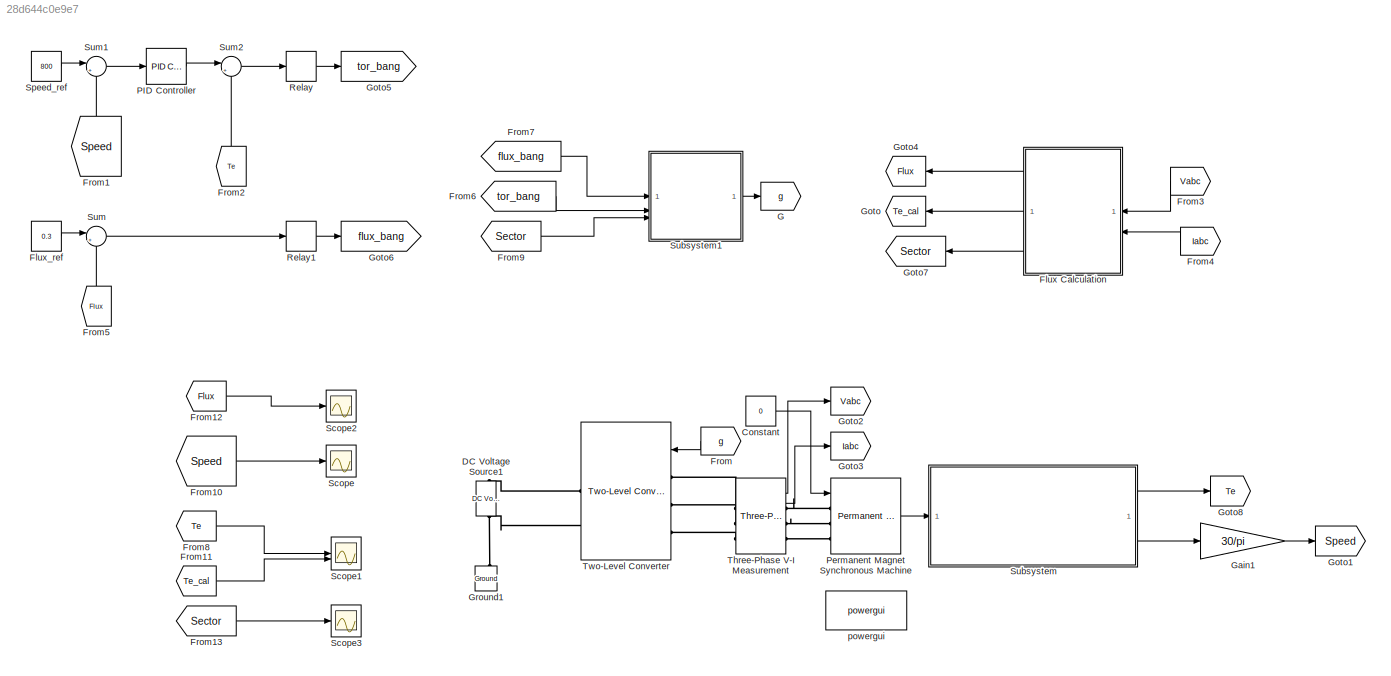
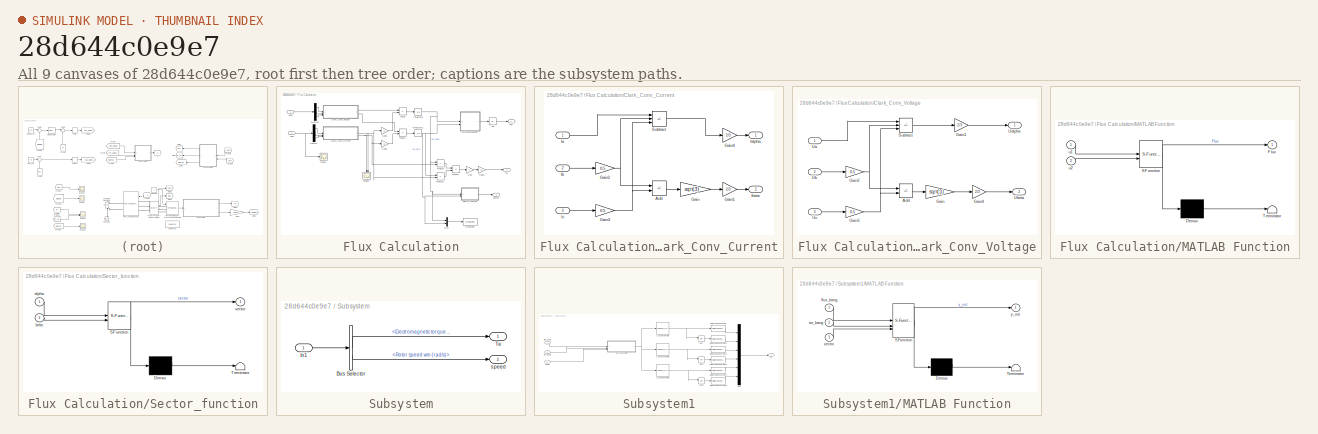
[diagram: thumbnail index - all 9 canvases of the model, root first then tree order]
MODEL slx_28d644c0e9e7
KIND model
CONFIG AbsTol = auto
CONFIG EnableMultiTasking = off
CONFIG FixedStep = auto
CONFIG MaxStep = auto
CONFIG MinStep = auto
CONFIG RelTol = 1e-4
CONFIG SampleTimeConstraint = Unconstrained
CONFIG SolverName = ode23tb
CONFIG StartTime = 0.0
CONFIG StopTime = 0.4
BLOCK [Constant] Constant
  Value = 0
BLOCK [Reference] DC Voltage Source1  REF=spsDCVoltageSourceLib/DC Voltage Source
  LibrarySourceBlock = sps_lib/Sources/DC Voltage Source
  SourceBlock = spsDCVoltageSourceLib/DC Voltage Source
  SourceType = DC Voltage Source
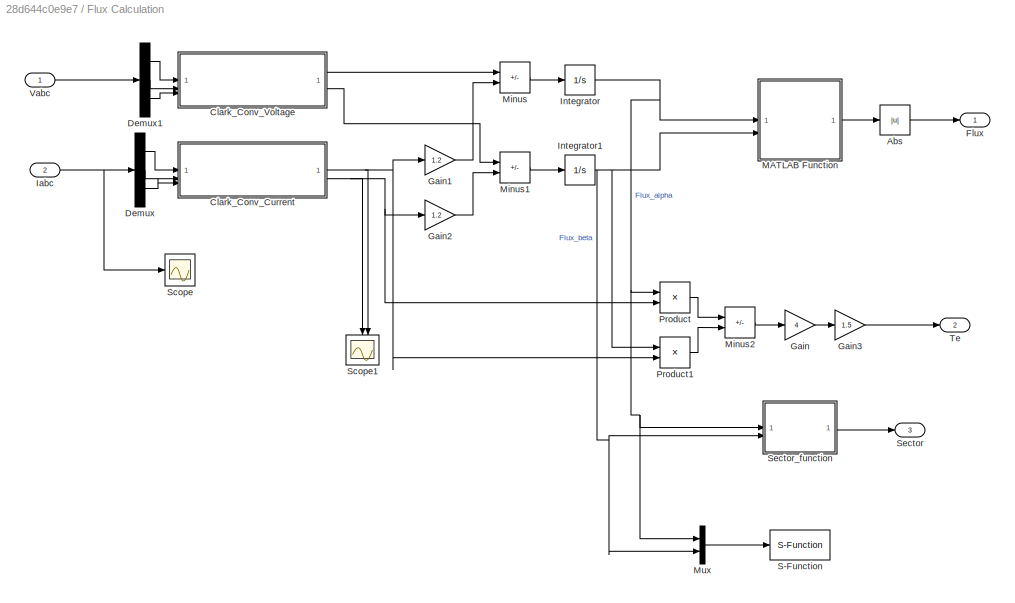
BLOCK [SubSystem] Flux Calculation
BLOCK [Abs] Flux Calculation/Abs
  Commented = through
  SaturateOnIntegerOverflow = off
BLOCK [SubSystem] Flux Calculation/Clark_Conv_Current
BLOCK [Sum] Flux Calculation/Clark_Conv_Current/Add
  IconShape = rectangular
  Inputs = +-
BLOCK [Gain] Flux Calculation/Clark_Conv_Current/Gain
  Gain = sqrt(3)
BLOCK [Gain] Flux Calculation/Clark_Conv_Current/Gain1
  Gain = 2/3
BLOCK [Gain] Flux Calculation/Clark_Conv_Current/Gain2
  Gain = 0.5
BLOCK [Gain] Flux Calculation/Clark_Conv_Current/Gain3
  Gain = 0.5
BLOCK [Gain] Flux Calculation/Clark_Conv_Current/Gain4
  Gain = 2/3
BLOCK [Inport] Flux Calculation/Clark_Conv_Current/Ia
BLOCK [Outport] Flux Calculation/Clark_Conv_Current/Ialpha
BLOCK [Inport] Flux Calculation/Clark_Conv_Current/Ib
  Port = 2
BLOCK [Outport] Flux Calculation/Clark_Conv_Current/Ibeta
  Port = 2
BLOCK [Inport] Flux Calculation/Clark_Conv_Current/Ic
  Port = 3
BLOCK [Sum] Flux Calculation/Clark_Conv_Current/Subtract
  IconShape = rectangular
  Inputs = +--
BLOCK [SubSystem] Flux Calculation/Clark_Conv_Voltage
BLOCK [Sum] Flux Calculation/Clark_Conv_Voltage/Add
  IconShape = rectangular
  Inputs = +-
BLOCK [Gain] Flux Calculation/Clark_Conv_Voltage/Gain
  Gain = sqrt(3)
BLOCK [Gain] Flux Calculation/Clark_Conv_Voltage/Gain1
  Gain = 2/3
BLOCK [Gain] Flux Calculation/Clark_Conv_Voltage/Gain2
  Gain = 0.5
BLOCK [Gain] Flux Calculation/Clark_Conv_Voltage/Gain3
  Gain = 0.5
BLOCK [Gain] Flux Calculation/Clark_Conv_Voltage/Gain4
  Gain = 2/3
BLOCK [Sum] Flux Calculation/Clark_Conv_Voltage/Subtract
  IconShape = rectangular
  Inputs = +--
BLOCK [Inport] Flux Calculation/Clark_Conv_Voltage/Ua
BLOCK [Outport] Flux Calculation/Clark_Conv_Voltage/Ualpha
BLOCK [Inport] Flux Calculation/Clark_Conv_Voltage/Ub
  Port = 2
BLOCK [Outport] Flux Calculation/Clark_Conv_Voltage/Ubeta
  Port = 2
BLOCK [Inport] Flux Calculation/Clark_Conv_Voltage/Uc
  Port = 3
BLOCK [Demux] Flux Calculation/Demux
  Outputs = 3
BLOCK [Demux] Flux Calculation/Demux1
  Outputs = 3
BLOCK [Outport] Flux Calculation/Flux
BLOCK [Gain] Flux Calculation/Gain
  Gain = 4
BLOCK [Gain] Flux Calculation/Gain1
  Gain = 1.2
BLOCK [Gain] Flux Calculation/Gain2
  Gain = 1.2
BLOCK [Gain] Flux Calculation/Gain3
  Gain = 1.5
BLOCK [Inport] Flux Calculation/Iabc
  Port = 2
BLOCK [Integrator] Flux Calculation/Integrator
BLOCK [Integrator] Flux Calculation/Integrator1
BLOCK [SubSystem] Flux Calculation/MATLAB Function
  ErrorFcn = Stateflow.Translate.translate
  LibrarySourceBlock = simulink/User-Defined\nFunctions/MATLAB Function
  PermitHierarchicalResolution = ExplicitOnly
  SFBlockType = MATLAB Function
  TreatAsAtomicUnit = on
BLOCK [Demux] Flux Calculation/MATLAB Function/ Demux 
  Outputs = 1
BLOCK [S-Function] Flux Calculation/MATLAB Function/ SFunction 
  EnableBusSupport = on
  FunctionName = sf_sfun
  PortCounts = [2 2]
  SFcnIsStateOwnerBlock = off
  SFunctionDeploymentMode = off
  Tag = Stateflow S-Function 2
BLOCK [Terminator] Flux Calculation/MATLAB Function/ Terminator 
BLOCK [Outport] Flux Calculation/MATLAB Function/Flux
BLOCK [Inport] Flux Calculation/MATLAB Function/u1
BLOCK [Inport] Flux Calculation/MATLAB Function/u2
  Port = 2
BLOCK [Sum] Flux Calculation/Minus
  IconShape = rectangular
  Inputs = +-
BLOCK [Sum] Flux Calculation/Minus1
  IconShape = rectangular
  Inputs = +-
BLOCK [Sum] Flux Calculation/Minus2
  IconShape = rectangular
  Inputs = +-
BLOCK [Mux] Flux Calculation/Mux
  DisplayOption = bar
  Inputs = 2
BLOCK [Product] Flux Calculation/Product
BLOCK [Product] Flux Calculation/Product1
BLOCK [S-Function] Flux Calculation/S-Function
  Commented = on
  EnableBusSupport = off
  FunctionName = sector
  SFcnIsStateOwnerBlock = off
  SFunctionDeploymentMode = off
BLOCK [Scope] Flux Calculation/Scope
  Floating = off
  NumInputPorts = 1
  ScopeSpecificationString = Simulink.scopes.TimeScopeBlockCfg('CurrentConfiguration', extmgr.ConfigurationSet(extmgr.Configuration('Core','General UI',true),extmgr.Configuration('Core','Source UI',true),extmgr.Configuration('Sources','WiredSimulink',true,'DataLoggingVariableName','ScopeData1'),extmgr.Configuration('Visuals','Time Domain',true,'SerializedDisplays',{struct('MinYLimReal','-43.07955','MaxYLimReal','43.6486','YLa...<+1457ch>
BLOCK [Scope] Flux Calculation/Scope1
  Floating = off
  NameLocation = left
  NumInputPorts = 2
  ScopeSpecificationString = Simulink.scopes.TimeScopeBlockCfg('CurrentConfiguration', extmgr.ConfigurationSet(extmgr.Configuration('Core','General UI',true),extmgr.Configuration('Core','Source UI',true),extmgr.Configuration('Sources','WiredSimulink',true,'DataLoggingVariableName','ScopeData2'),extmgr.Configuration('Visuals','Time Domain',true,'SerializedDisplays',{struct('MinYLimReal','-44.45059','MaxYLimReal','27.88646','YL...<+1461ch>
BLOCK [Outport] Flux Calculation/Sector
  Port = 3
BLOCK [SubSystem] Flux Calculation/Sector_function
  ErrorFcn = Stateflow.Translate.translate
  LibrarySourceBlock = simulink/User-Defined\nFunctions/MATLAB Function
  PermitHierarchicalResolution = ExplicitOnly
  SFBlockType = MATLAB Function
  TreatAsAtomicUnit = on
BLOCK [Demux] Flux Calculation/Sector_function/ Demux 
  Outputs = 1
BLOCK [S-Function] Flux Calculation/Sector_function/ SFunction 
  EnableBusSupport = on
  FunctionName = sf_sfun
  PortCounts = [2 2]
  SFcnIsStateOwnerBlock = off
  SFunctionDeploymentMode = off
  Tag = Stateflow S-Function 4
BLOCK [Terminator] Flux Calculation/Sector_function/ Terminator 
BLOCK [Inport] Flux Calculation/Sector_function/alpha
BLOCK [Inport] Flux Calculation/Sector_function/beta
  Port = 2
BLOCK [Outport] Flux Calculation/Sector_function/sector
BLOCK [Outport] Flux Calculation/Te
  Port = 2
BLOCK [Inport] Flux Calculation/Vabc
BLOCK [Constant] Flux_ref
  Value = 0.3
BLOCK [From] From
  GotoTag = g
BLOCK [From] From1
  GotoTag = Speed
  NameLocation = right
BLOCK [From] From10
  GotoTag = Speed
BLOCK [From] From11
  GotoTag = Te_cal
BLOCK [From] From12
  GotoTag = Flux
  NameLocation = top
BLOCK [From] From13
  GotoTag = Sector
BLOCK [From] From2
  GotoTag = Te
  NameLocation = right
BLOCK [From] From3
  GotoTag = Vabc
BLOCK [From] From4
  GotoTag = Iabc
BLOCK [From] From5
  GotoTag = Flux
  NameLocation = left
BLOCK [From] From6
  GotoTag = tor_bang
BLOCK [From] From7
  GotoTag = flux_bang
BLOCK [From] From8
  GotoTag = Te
BLOCK [From] From9
  GotoTag = Sector
BLOCK [Goto] G
  GotoTag = g
BLOCK [Gain] Gain1
  Gain = 30/pi
BLOCK [Goto] Goto
  GotoTag = Te_cal
BLOCK [Goto] Goto1
  GotoTag = Speed
BLOCK [Goto] Goto2
  GotoTag = Vabc
BLOCK [Goto] Goto3
  GotoTag = Iabc
BLOCK [Goto] Goto4
  GotoTag = Flux
BLOCK [Goto] Goto5
  GotoTag = tor_bang
BLOCK [Goto] Goto6
  GotoTag = flux_bang
BLOCK [Goto] Goto7
  GotoTag = Sector
BLOCK [Goto] Goto8
  GotoTag = Te
BLOCK [Reference] Ground1  REF=spsGroundLib/Ground
  LibrarySourceBlock = sps_lib/Utilities/Ground
  NameLocation = right
  SourceBlock = spsGroundLib/Ground
  SourceType = Ground
BLOCK [Reference] PID Controller  REF=slpidlib/PID Controller
  LibrarySourceBlock = simulink/Continuous/PID Controller
  SourceBlock = slpidlib/PID Controller
  SourceType = PID 1dof
BLOCK [Reference] Permanent Magnet Synchronous Machine  REF=spsPermanentMagnetSynchronousMachineLib/Permanent Magnet
Synchronous Machine
  LibrarySourceBlock = sps_lib/Electrical Machines/Permanent Magnet\nSynchronous Machine
  SourceBlock = spsPermanentMagnetSynchronousMachineLib/Permanent Magnet\nSynchronous Machine
  SourceType = Permanent Magnet Synchronous Machine
BLOCK [Relay] Relay
  OffSwitchValue = -0.1
  OnSwitchValue = 0.1
BLOCK [Relay] Relay1
  OffSwitchValue = -0.002
  OnSwitchValue = 0.002
  ZeroCross = off
BLOCK [Scope] Scope
  Floating = off
  NumInputPorts = 1
  ScopeSpecificationString = Simulink.scopes.TimeScopeBlockCfg('CurrentConfiguration', extmgr.ConfigurationSet(extmgr.Configuration('Core','General UI',true),extmgr.Configuration('Core','Source UI',true),extmgr.Configuration('Sources','WiredSimulink',true),extmgr.Configuration('Visuals','Time Domain',true,'SerializedDisplays',{struct('MinYLimReal','-131.11034','MaxYLimReal','1172.12178','YLabelReal','','MinYLimMag',' 0.00000'...<+1396ch>
BLOCK [Scope] Scope1
  Floating = off
  NumInputPorts = 2
  ScopeSpecificationString = Simulink.scopes.TimeScopeBlockCfg('CurrentConfiguration', extmgr.ConfigurationSet(extmgr.Configuration('Core','General UI',true),extmgr.Configuration('Core','Source UI',true),extmgr.Configuration('Sources','WiredSimulink',true,'DataLoggingVariableName','ScopeData3'),extmgr.Configuration('Visuals','Time Domain',true,'SerializedDisplays',{struct('MinYLimReal','-26.73405','MaxYLimReal','27.60345','YL...<+1470ch>
BLOCK [Scope] Scope2
  Floating = off
  NumInputPorts = 1
  ScopeSpecificationString = Simulink.scopes.TimeScopeBlockCfg('CurrentConfiguration', extmgr.ConfigurationSet(extmgr.Configuration('Core','General UI',true),extmgr.Configuration('Core','Source UI',true),extmgr.Configuration('Sources','WiredSimulink',true,'DataLoggingVariableName','ScopeData4'),extmgr.Configuration('Visuals','Time Domain',true,'SerializedDisplays',{struct('MinYLimReal','-0.04138','MaxYLimReal','0.37241','YLab...<+1430ch>
BLOCK [Scope] Scope3
  Floating = off
  NumInputPorts = 1
  ScopeSpecificationString = Simulink.scopes.TimeScopeBlockCfg('CurrentConfiguration', extmgr.ConfigurationSet(extmgr.Configuration('Core','General UI',true),extmgr.Configuration('Core','Source UI',true),extmgr.Configuration('Sources','WiredSimulink',true,'DataLoggingVariableName','ScopeData1'),extmgr.Configuration('Visuals','Time Domain',true,'SerializedDisplays',{struct('MinYLimReal','0.375','MaxYLimReal','6.625','YLabelRea...<+1421ch>
BLOCK [Constant] Speed_ref
  Value = 800
BLOCK [SubSystem] Subsystem
BLOCK [BusSelector] Subsystem/Bus Selector
  OutputSignals = Electromagnetic torque Te (N*m),Rotor speed wm (rad/s)
BLOCK [Inport] Subsystem/In1
BLOCK [Outport] Subsystem/Te
BLOCK [Outport] Subsystem/speed 
  Port = 2
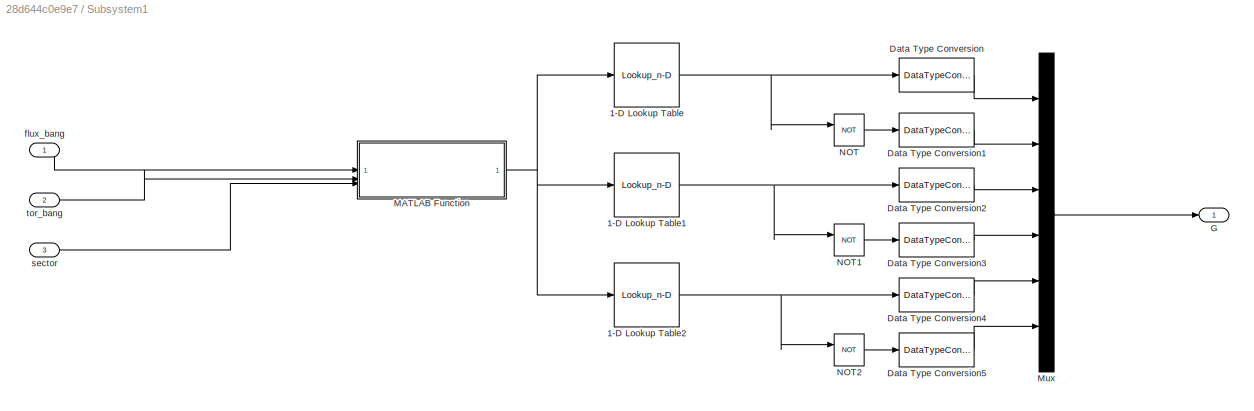
BLOCK [SubSystem] Subsystem1
BLOCK [Lookup_n-D] Subsystem1/1-D Lookup Table
  BreakpointsForDimension1 = [1,2,3,4,5,6]
  InputPortMap = u0
  InternalRulePriority = Speed
  NumberOfTableDimensions = 1
  RndMeth = Simplest
  Table = [0 0 0 1 1 1]
BLOCK [Lookup_n-D] Subsystem1/1-D Lookup Table1
  BreakpointsForDimension1 = [1,2,3,4,5,6]
  InputPortMap = u0
  InternalRulePriority = Speed
  NumberOfTableDimensions = 1
  RndMeth = Simplest
  Table = [0 1 1 0 0 1]
BLOCK [Lookup_n-D] Subsystem1/1-D Lookup Table2
  BreakpointsForDimension1 = [1,2,3,4,5,6]
  InputPortMap = u0
  InternalRulePriority = Speed
  NumberOfTableDimensions = 1
  RndMeth = Simplest
  Table = [1 0 1 0 1 0]
BLOCK [DataTypeConversion] Subsystem1/Data Type Conversion
  RndMeth = Floor
  SaturateOnIntegerOverflow = off
BLOCK [DataTypeConversion] Subsystem1/Data Type Conversion1
  RndMeth = Floor
  SaturateOnIntegerOverflow = off
BLOCK [DataTypeConversion] Subsystem1/Data Type Conversion2
  RndMeth = Floor
  SaturateOnIntegerOverflow = off
BLOCK [DataTypeConversion] Subsystem1/Data Type Conversion3
  RndMeth = Floor
  SaturateOnIntegerOverflow = off
BLOCK [DataTypeConversion] Subsystem1/Data Type Conversion4
  RndMeth = Floor
  SaturateOnIntegerOverflow = off
BLOCK [DataTypeConversion] Subsystem1/Data Type Conversion5
  RndMeth = Floor
  SaturateOnIntegerOverflow = off
BLOCK [Outport] Subsystem1/G
BLOCK [SubSystem] Subsystem1/MATLAB Function
  ErrorFcn = Stateflow.Translate.translate
  LibrarySourceBlock = simulink/User-Defined\nFunctions/MATLAB Function
  PermitHierarchicalResolution = ExplicitOnly
  SFBlockType = MATLAB Function
  TreatAsAtomicUnit = on
BLOCK [Demux] Subsystem1/MATLAB Function/ Demux 
  Outputs = 1
BLOCK [S-Function] Subsystem1/MATLAB Function/ SFunction 
  EnableBusSupport = on
  FunctionName = sf_sfun
  PortCounts = [3 2]
  SFcnIsStateOwnerBlock = off
  SFunctionDeploymentMode = off
  Tag = Stateflow S-Function 3
BLOCK [Terminator] Subsystem1/MATLAB Function/ Terminator 
BLOCK [Inport] Subsystem1/MATLAB Function/flux_bang
BLOCK [Inport] Subsystem1/MATLAB Function/sector
  Port = 3
BLOCK [Inport] Subsystem1/MATLAB Function/tor_bang
  Port = 2
BLOCK [Outport] Subsystem1/MATLAB Function/y_out
BLOCK [Mux] Subsystem1/Mux
  DisplayOption = bar
  Inputs = 6
BLOCK [Logic] Subsystem1/NOT
  AllPortsSameDT = off
  IconShape = distinctive
  Operator = NOT
  OutDataTypeStr = boolean
BLOCK [Logic] Subsystem1/NOT1
  AllPortsSameDT = off
  IconShape = distinctive
  Operator = NOT
  OutDataTypeStr = boolean
BLOCK [Logic] Subsystem1/NOT2
  AllPortsSameDT = off
  IconShape = distinctive
  Operator = NOT
  OutDataTypeStr = boolean
BLOCK [Inport] Subsystem1/flux_bang
BLOCK [Inport] Subsystem1/sector
  Port = 3
BLOCK [Inport] Subsystem1/tor_bang
  Port = 2
BLOCK [Sum] Sum
  Inputs = |+-
BLOCK [Sum] Sum1
  Inputs = |+-
BLOCK [Sum] Sum2
  Inputs = |+-
BLOCK [Reference] Three-Phase V-I Measurement  REF=spsThreePhaseVIMeasurementLib/Three-Phase
V-I Measurement
  LibrarySourceBlock = sps_lib/Sensors and Measurements/Three-Phase\nV-I Measurement
  SourceBlock = spsThreePhaseVIMeasurementLib/Three-Phase\nV-I Measurement
  SourceType = Three-Phase VI Measurement
BLOCK [Reference] Two-Level Converter  REF=spsTwoLevelConverterLib/Two-Level Converter
  LibrarySourceBlock = sps_lib/Power Electronics/Two-Level Converter
  SourceBlock = spsTwoLevelConverterLib/Two-Level Converter
  SourceType = Two-Level Converter
BLOCK [Reference] powergui  REF=spspowerguiLib/powergui
  LibrarySourceBlock = sps_lib/powergui
  Priority = 1
  SourceBlock = spspowerguiLib/powergui
  SourceType = PSB option menu block
LINE Constant:1 -> Permanent Magnet Synchronous Machine:1
LINE Flux Calculation/Abs:1 -> Flux Calculation/Flux:1
LINE Flux Calculation/Clark_Conv_Current/Add:1 -> Flux Calculation/Clark_Conv_Current/Gain:1
LINE Flux Calculation/Clark_Conv_Current/Gain1:1 -> Flux Calculation/Clark_Conv_Current/Ibeta:1
NET Flux Calculation/Clark_Conv_Current/Gain2:1 -> Flux Calculation/Clark_Conv_Current/Add:1, Flux Calculation/Clark_Conv_Current/Subtract:2
NET Flux Calculation/Clark_Conv_Current/Gain3:1 -> Flux Calculation/Clark_Conv_Current/Add:2, Flux Calculation/Clark_Conv_Current/Subtract:3
LINE Flux Calculation/Clark_Conv_Current/Gain4:1 -> Flux Calculation/Clark_Conv_Current/Ialpha:1
LINE Flux Calculation/Clark_Conv_Current/Gain:1 -> Flux Calculation/Clark_Conv_Current/Gain1:1
LINE Flux Calculation/Clark_Conv_Current/Ia:1 -> Flux Calculation/Clark_Conv_Current/Subtract:1
LINE Flux Calculation/Clark_Conv_Current/Ib:1 -> Flux Calculation/Clark_Conv_Current/Gain2:1
LINE Flux Calculation/Clark_Conv_Current/Ic:1 -> Flux Calculation/Clark_Conv_Current/Gain3:1
LINE Flux Calculation/Clark_Conv_Current/Subtract:1 -> Flux Calculation/Clark_Conv_Current/Gain4:1
NET Flux Calculation/Clark_Conv_Current:1 -> Flux Calculation/Gain1:1, Flux Calculation/Product1:2, Flux Calculation/Scope1:2
NET Flux Calculation/Clark_Conv_Current:2 -> Flux Calculation/Gain2:1, Flux Calculation/Product:2, Flux Calculation/Scope1:1
LINE Flux Calculation/Clark_Conv_Voltage/Add:1 -> Flux Calculation/Clark_Conv_Voltage/Gain:1
LINE Flux Calculation/Clark_Conv_Voltage/Gain1:1 -> Flux Calculation/Clark_Conv_Voltage/Ualpha:1
NET Flux Calculation/Clark_Conv_Voltage/Gain2:1 -> Flux Calculation/Clark_Conv_Voltage/Add:1, Flux Calculation/Clark_Conv_Voltage/Subtract:2
NET Flux Calculation/Clark_Conv_Voltage/Gain3:1 -> Flux Calculation/Clark_Conv_Voltage/Add:2, Flux Calculation/Clark_Conv_Voltage/Subtract:3
LINE Flux Calculation/Clark_Conv_Voltage/Gain4:1 -> Flux Calculation/Clark_Conv_Voltage/Ubeta:1
LINE Flux Calculation/Clark_Conv_Voltage/Gain:1 -> Flux Calculation/Clark_Conv_Voltage/Gain4:1
LINE Flux Calculation/Clark_Conv_Voltage/Subtract:1 -> Flux Calculation/Clark_Conv_Voltage/Gain1:1
LINE Flux Calculation/Clark_Conv_Voltage/Ua:1 -> Flux Calculation/Clark_Conv_Voltage/Subtract:1
LINE Flux Calculation/Clark_Conv_Voltage/Ub:1 -> Flux Calculation/Clark_Conv_Voltage/Gain2:1
LINE Flux Calculation/Clark_Conv_Voltage/Uc:1 -> Flux Calculation/Clark_Conv_Voltage/Gain3:1
LINE Flux Calculation/Clark_Conv_Voltage:1 -> Flux Calculation/Minus:1
LINE Flux Calculation/Clark_Conv_Voltage:2 -> Flux Calculation/Minus1:1
LINE Flux Calculation/Demux1:1 -> Flux Calculation/Clark_Conv_Voltage:1
LINE Flux Calculation/Demux1:2 -> Flux Calculation/Clark_Conv_Voltage:2
LINE Flux Calculation/Demux1:3 -> Flux Calculation/Clark_Conv_Voltage:3
LINE Flux Calculation/Demux:1 -> Flux Calculation/Clark_Conv_Current:1
LINE Flux Calculation/Demux:2 -> Flux Calculation/Clark_Conv_Current:2
LINE Flux Calculation/Demux:3 -> Flux Calculation/Clark_Conv_Current:3
LINE Flux Calculation/Gain1:1 -> Flux Calculation/Minus:2
LINE Flux Calculation/Gain2:1 -> Flux Calculation/Minus1:2
LINE Flux Calculation/Gain3:1 -> Flux Calculation/Te:1
LINE Flux Calculation/Gain:1 -> Flux Calculation/Gain3:1
NET Flux Calculation/Iabc:1 -> Flux Calculation/Demux:1, Flux Calculation/Scope:1
NET Flux Calculation/Integrator1:1 -> Flux Calculation/MATLAB Function:2, Flux Calculation/Mux:2, Flux Calculation/Product1:1, Flux Calculation/Sector_function:2
NET Flux Calculation/Integrator:1 -> Flux Calculation/MATLAB Function:1, Flux Calculation/Mux:1, Flux Calculation/Product:1, Flux Calculation/Sector_function:1
LINE Flux Calculation/MATLAB Function:1 -> Flux Calculation/Abs:1
LINE Flux Calculation/Minus1:1 -> Flux Calculation/Integrator1:1
LINE Flux Calculation/Minus2:1 -> Flux Calculation/Gain:1
LINE Flux Calculation/Minus:1 -> Flux Calculation/Integrator:1
LINE Flux Calculation/Mux:1 -> Flux Calculation/S-Function:1
LINE Flux Calculation/Product1:1 -> Flux Calculation/Minus2:2
LINE Flux Calculation/Product:1 -> Flux Calculation/Minus2:1
LINE Flux Calculation/Sector_function:1 -> Flux Calculation/Sector:1
LINE Flux Calculation/Vabc:1 -> Flux Calculation/Demux1:1
LINE Flux Calculation:1 -> Goto4:1
LINE Flux Calculation:2 -> Goto:1
LINE Flux Calculation:3 -> Goto7:1
LINE Flux_ref:1 -> Sum:1
LINE From10:1 -> Scope:1
LINE From11:1 -> Scope1:2
LINE From12:1 -> Scope2:1
LINE From13:1 -> Scope3:1
LINE From1:1 -> Sum1:2
LINE From2:1 -> Sum2:2
LINE From3:1 -> Flux Calculation:1
LINE From4:1 -> Flux Calculation:2
LINE From5:1 -> Sum:2
LINE From6:1 -> Subsystem1:2
LINE From7:1 -> Subsystem1:1
LINE From8:1 -> Scope1:1
LINE From9:1 -> Subsystem1:3
LINE From:1 -> Two-Level Converter:1
LINE Gain1:1 -> Goto1:1
LINE PID Controller:1 -> Sum2:1
LINE Permanent Magnet Synchronous Machine:1 -> Subsystem:1
LINE Relay1:1 -> Goto6:1
LINE Relay:1 -> Goto5:1
LINE Speed_ref:1 -> Sum1:1
LINE Subsystem/Bus Selector:1 -> Subsystem/Te:1
LINE Subsystem/Bus Selector:2 -> Subsystem/speed :1
LINE Subsystem/In1:1 -> Subsystem/Bus Selector:1
NET Subsystem1/1-D Lookup Table1:1 -> Subsystem1/Data Type Conversion2:1, Subsystem1/NOT1:1
NET Subsystem1/1-D Lookup Table2:1 -> Subsystem1/Data Type Conversion4:1, Subsystem1/NOT2:1
NET Subsystem1/1-D Lookup Table:1 -> Subsystem1/Data Type Conversion:1, Subsystem1/NOT:1
LINE Subsystem1/Data Type Conversion1:1 -> Subsystem1/Mux:2
LINE Subsystem1/Data Type Conversion2:1 -> Subsystem1/Mux:3
LINE Subsystem1/Data Type Conversion3:1 -> Subsystem1/Mux:4
LINE Subsystem1/Data Type Conversion4:1 -> Subsystem1/Mux:5
LINE Subsystem1/Data Type Conversion5:1 -> Subsystem1/Mux:6
LINE Subsystem1/Data Type Conversion:1 -> Subsystem1/Mux:1
NET Subsystem1/MATLAB Function:1 -> Subsystem1/1-D Lookup Table1:1, Subsystem1/1-D Lookup Table2:1, Subsystem1/1-D Lookup Table:1
LINE Subsystem1/Mux:1 -> Subsystem1/G:1
LINE Subsystem1/NOT1:1 -> Subsystem1/Data Type Conversion3:1
LINE Subsystem1/NOT2:1 -> Subsystem1/Data Type Conversion5:1
LINE Subsystem1/NOT:1 -> Subsystem1/Data Type Conversion1:1
LINE Subsystem1/flux_bang:1 -> Subsystem1/MATLAB Function:1
LINE Subsystem1/sector:1 -> Subsystem1/MATLAB Function:3
LINE Subsystem1/tor_bang:1 -> Subsystem1/MATLAB Function:2
LINE Subsystem1:1 -> G:1
LINE Subsystem:1 -> Goto8:1
LINE Subsystem:2 -> Gain1:1
LINE Sum1:1 -> PID Controller:1
LINE Sum2:1 -> Relay:1
LINE Sum:1 -> Relay1:1
LINE Three-Phase V-I Measurement:1 -> Goto2:1
LINE Three-Phase V-I Measurement:2 -> Goto3:1
PNET net1: DC Voltage Source1:LConn1 -- Ground1:LConn1 -- Two-Level Converter:RConn2
PLINE DC Voltage Source1:RConn1 -- Two-Level Converter:RConn1
PLINE Permanent Magnet Synchronous Machine:LConn1 -- Three-Phase V-I Measurement:RConn1
PLINE Permanent Magnet Synchronous Machine:LConn2 -- Three-Phase V-I Measurement:RConn2
PLINE Permanent Magnet Synchronous Machine:LConn3 -- Three-Phase V-I Measurement:RConn3
PLINE Three-Phase V-I Measurement:LConn1 -- Two-Level Converter:LConn1
PLINE Three-Phase V-I Measurement:LConn2 -- Two-Level Converter:LConn2
PLINE Three-Phase V-I Measurement:LConn3 -- Two-Level Converter:LConn3
note: NET lines group one-source signal fan-out (src -> all destinations, sorted); 1:1 wires keep LINE; PNET lines group multi-terminal physical nets as a canonical sorted terminal list (undirected conserving connections); 2-terminal nets keep the pairwise PLINE form
CHART Flux Calculation/MATLAB Function states=1 transitions=1
  STATE_LABEL 'eML_blk_kernel()'
  STATE_LABEL 'SCRIPT:\nfunction Flux = fcn(u1,u2)\n\nFlux = sqrt(u1^2+u2^2);\n'
CHART Subsystem1/MATLAB Function states=1 transitions=1
  STATE_LABEL 'eML_blk_kernel()'
  STATE_LABEL 'SCRIPT:\nfunction y_out = fcn(flux_bang,tor_bang,sector)\n\nV_Table=[5 3 1 6 4 2;3 6 2 5 1 4 ;4 1 5 2 6 3;2 4 6 1 3 5];\nx=2*flux_bang+tor_bang+1;\ny_out=V_Table(x,sector);\nend'
CHART Flux Calculation/Sector_function states=1 transitions=1
  STATE_LABEL 'eML_blk_kernel()'
  STATE_LABEL 'SCRIPT:\nfunction sector = fcn(alpha,beta)\n\nif(beta==0)\n    sector=1;\nelse\nf1 = alpha;\nf2 =-alpha+sqrt(3)*beta;\nf3 =-alpha-sqrt(3)*beta;\nif(f1>0)\n    a=0;\nelse\n    a=1;\nend\n\nif(f2>0)\n    b=0;\nelse\n    b=1;\nend\n\nif(f3>0)\n    c=0;\nelse\n    c=1;\nend\n\nsector=4*a+2*b+c;\nend\n\n'
CHART  states=0 transitions=0
CHART  states=0 transitions=0
CHART  states=0 transitions=0
